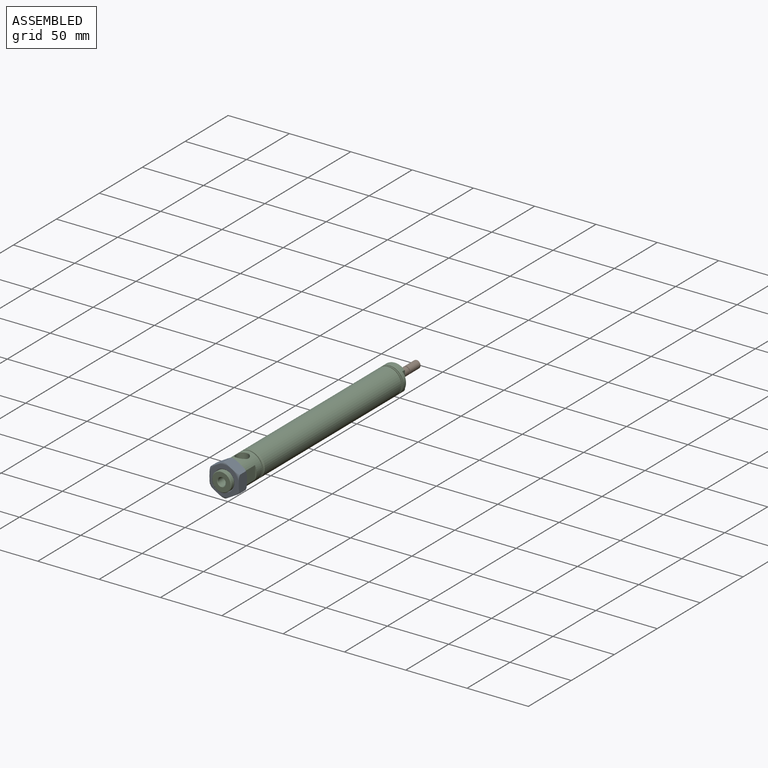
[diagram: assembled view]
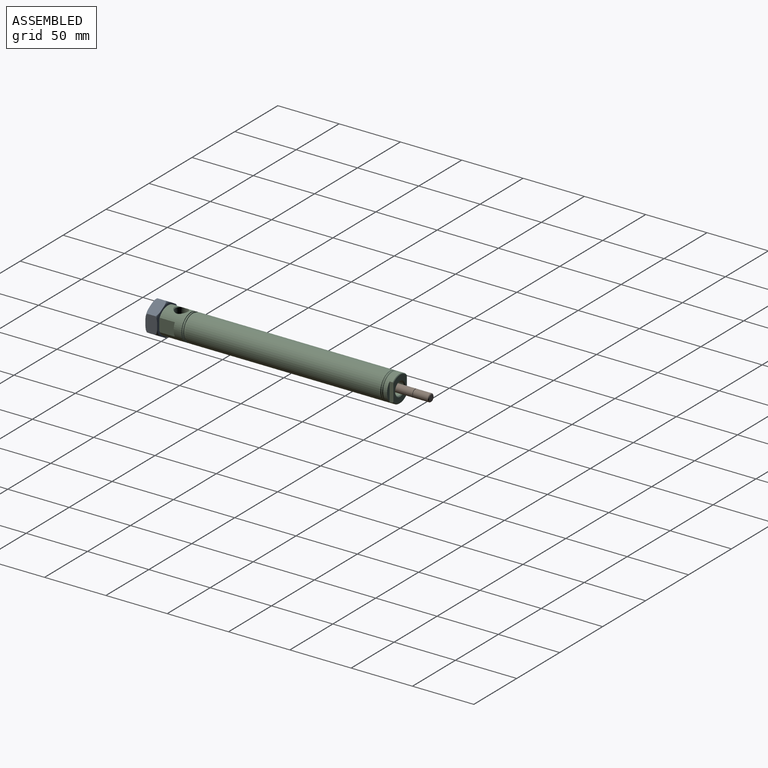
[diagram: assembled view, second angle]
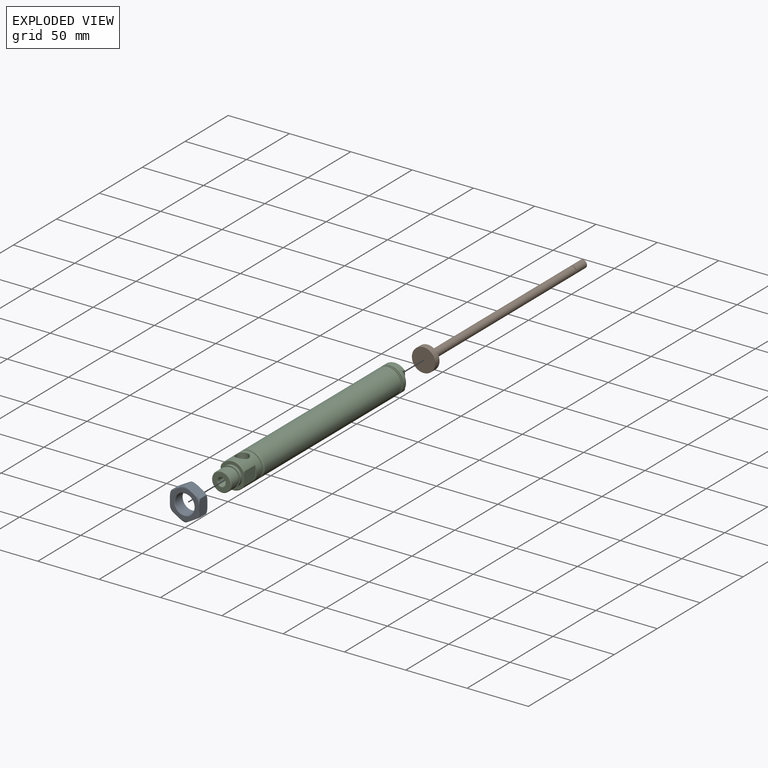
[diagram: exploded view]
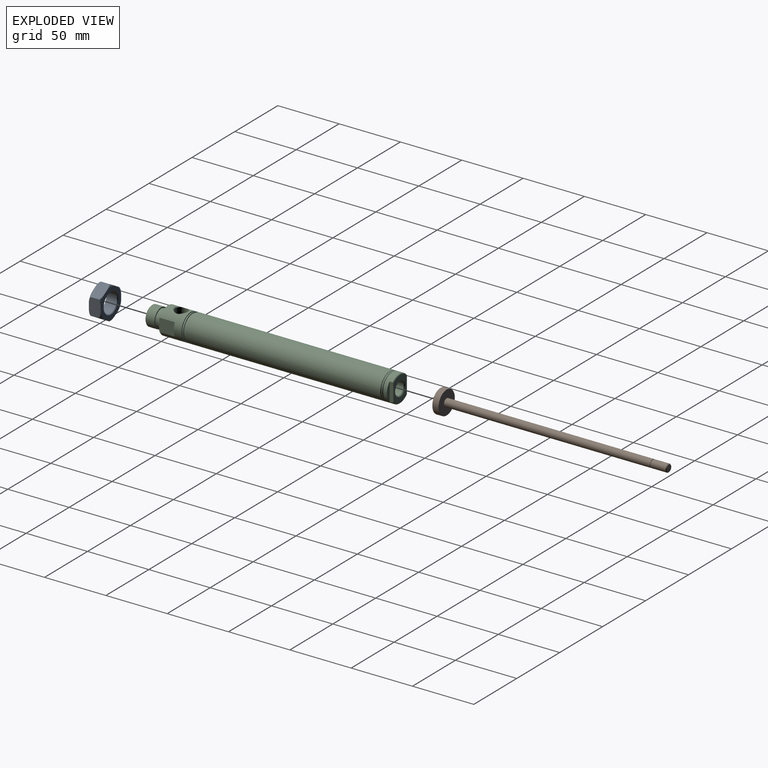
[diagram: exploded view, second angle]
ASSEMBLY  parts=3 mates=2
PART A: 13 faces, bbox 29.8x9.7x29.8 mm
  f0: plane 23.57x23.57mm, normal (0,-1,0), area 212.7mm2, adj f11,f12
  f1: cylinder r=7.94mm len=15.88mm, axis (0,1,0), area 431.5mm2, adj f9,f12
  f2: plane 11.94x9.64mm, normal (0.5,0,0.87), area 125mm2, adj f3,f7,f10,f11
  f3: plane 11.94x9.64mm, normal (-0.5,0,0.87), area 125mm2, adj f2,f4,f10,f11
  f4: plane 13.79x9.64mm, normal (-1,0,0), area 125mm2, adj f3,f5,f10,f11
  f5: plane 11.94x9.64mm, normal (-0.5,0,-0.87), area 125mm2, adj f4,f6,f10,f11
  f6: plane 11.94x9.64mm, normal (0.5,0,-0.87), area 125mm2, adj f5,f7,f10,f11
  f7: plane 13.79x9.64mm, normal (1,0,0), area 125mm2, adj f2,f6,f10,f11
  f8: plane 23.57x23.57mm, normal (0,1,0), area 212.7mm2, adj f9,f10
  f9: cone r=8.44mm half-angle=45deg, axis (0,1,0), area 36.4mm2, adj f1,f8
  f10: torus R=11.78mm, axis (0,-1,0), area 63.9mm2, adj f2,f3,f4,f5,f6,f7,f8
  f11: torus R=11.78mm, axis (0,-1,0), area 63.9mm2, adj f0,f2,f3,f4,f5,f6,f7
  f12: cone r=7.94mm half-angle=45deg, axis (0,-1,0), area 36.4mm2, adj f0,f1
PART B: 10 faces, bbox 19.1x186.3x19.1 mm
  f0: cylinder r=9.53mm len=19.05mm, axis (0,1,0), area 299.2mm2, adj f1,f2
  f1: plane 19.05x19.05mm, normal (0,-1,0), area 253.4mm2, adj f0,f3
  f2: plane 19.05x19.05mm, normal (0,1,0), area 285mm2, adj f0
  f3: cylinder r=3.17mm len=168.07mm, axis (0,1,0), area 3352.8mm2, adj f1,f4
  f4: plane 6.35x6.35mm, normal (0,-1,0), area 9.2mm2, adj f3,f6
  f5: plane 6.35x6.35mm, normal (0,1,0), area 9.2mm2, adj f6,f7
  f6: cylinder r=2.67mm len=5.35mm, axis (0,1,0), area 8.4mm2, adj f4,f5
  f7: cylinder r=3.17mm len=12.2mm, axis (0,1,0), area 243.4mm2, adj f5,f8
  f8: cone r=2.67mm half-angle=45deg, axis (0,1,0), area 13mm2, adj f7,f9
  f9: plane 5.35x5.35mm, normal (0,-1,0), area 22.5mm2, adj f8
PART C: 48 faces, bbox 21.9x202.5x21.9 mm
  f0: cone r=10.42mm half-angle=45deg, axis (0,1,0), area 16.7mm2, adj f3,f5,f39,f45
  f1: cone r=10.42mm half-angle=45deg, axis (0,-1,0), area 12.5mm2, adj f21,f22,f41,f43
  f2: plane 8.11x1.98mm, normal (0,0,1), area 11.2mm2, adj f28,f30
  f3: cylinder r=10.92mm len=21.84mm, axis (0,1,0), area 906.8mm2, adj f0,f12,f26,f27,f28,f35,f38,f39
  f4: cylinder r=10.92mm len=21.84mm, axis (0,1,0), area 52.3mm2, adj f14,f15
  f5: plane 20.84x19.05mm, normal (0,-1,0), area 133.7mm2, adj f0,f11,f35,f39,f45
  f6: plane 14.88x14.88mm, normal (0,-1,0), area 131.4mm2, adj f36,f37
  f7: cylinder r=7.94mm len=15.88mm, axis (0,1,0), area 354.8mm2, adj f8,f36
  f8: plane 15.88x15.88mm, normal (0,1,0), area 44mm2, adj f7,f9
  f9: cylinder r=7mm len=14mm, axis (0,1,0), area 123.2mm2, adj f8,f10
  f10: plane 15.85x15.85mm, normal (0,-1,0), area 43.4mm2, adj f9,f11
  f11: cylinder r=7.92mm len=15.85mm, axis (0,1,0), area 113.8mm2, adj f5,f10
  f12: plane 21.84x21.84mm, normal (0,1,0), area 50.5mm2, adj f3,f13
  f13: cylinder r=10.16mm len=20.32mm, axis (0,1,0), area 48.6mm2, adj f12,f14
  f14: plane 21.84x21.84mm, normal (0,-1,0), area 50.5mm2, adj f4,f13
  f15: plane 21.84x21.84mm, normal (0,1,0), area 50.5mm2, adj f4,f16
  f16: cylinder r=10.16mm len=20.32mm, axis (0,1,0), area 48.6mm2, adj f15,f17
  f17: cone r=10.16mm half-angle=45deg, axis (0,1,0), area 71.4mm2, adj f16,f18
  f18: cylinder r=10.92mm len=159.13mm, axis (0,1,0), area 10920.4mm2, adj f17,f20
  f19: plane 21.84x21.84mm, normal (0,-1,0), area 50.5mm2, adj f20,f25
  f20: cone r=10.92mm half-angle=45deg, axis (0,-1,0), area 71.4mm2, adj f18,f19
  f21: plane 20.84x15.75mm, normal (0,1,0), area 186.1mm2, adj f1,f34,f41,f43,f47
  f22: cylinder r=10.92mm len=21.84mm, axis (0,1,0), area 307.5mm2, adj f1,f23,f34,f40,f41,f42,f43
  f23: plane 21.84x21.84mm, normal (0,-1,0), area 50.5mm2, adj f22,f24
  f24: cone r=10.92mm half-angle=45deg, axis (0,-1,0), area 71.4mm2, adj f23,f25
  f25: cylinder r=10.92mm len=21.84mm, axis (0,1,0), area 52.3mm2, adj f19,f24
  f26: cone r=5.15mm half-angle=45deg, axis (0,0,1), area 5.4mm2, adj f3,f28
  f27: cone r=5.15mm half-angle=45deg, axis (0,0,1), area 5.4mm2, adj f3,f28
  f28: cylinder r=5.15mm len=10.3mm, axis (0,0,-1), area 291.7mm2, adj f2,f3,f26,f27,f29,f30
  f29: plane 8.11x1.98mm, normal (0,0,1), area 11.2mm2, adj f28,f30
  f30: cylinder r=3.17mm len=41.07mm, axis (0,-1,0), area 727.2mm2, adj f2,f28,f29,f31,f37
  f31: plane 19.05x19.05mm, normal (0,1,0), area 253.4mm2, adj f30,f32
  f32: cylinder r=9.53mm len=132mm, axis (0,1,0), area 7899.8mm2, adj f31,f33
  f33: plane 19.05x19.05mm, normal (0,-1,0), area 201.7mm2, adj f32,f46
  f34: cone r=10.42mm half-angle=45deg, axis (0,-1,0), area 12.5mm2, adj f21,f22,f41,f43
  f35: cone r=10.42mm half-angle=45deg, axis (0,1,0), area 16.7mm2, adj f3,f5,f39,f45
  f36: cone r=7.94mm half-angle=45deg, axis (0,1,0), area 34.2mm2, adj f6,f7
  f37: cone r=3.17mm half-angle=45deg, axis (0,-1,0), area 15.2mm2, adj f6,f30
  f38: plane 10.69x1.4mm, normal (0,-1,0), area 10.1mm2, adj f3,f39
  f39: plane 12.74x10.73mm, normal (1,0,0), area 135.2mm2, adj f0,f3,f5,f35,f38
  f40: plane 15.14x3.05mm, normal (0,1,0), area 31.7mm2, adj f22,f41
  f41: plane 15.16x3.07mm, normal (1,0,0), area 45.8mm2, adj f1,f21,f22,f34,f40
  f42: plane 15.14x3.05mm, normal (0,1,0), area 31.7mm2, adj f22,f43
  f43: plane 15.16x3.07mm, normal (-1,0,0), area 45.8mm2, adj f1,f21,f22,f34,f42
  f44: plane 10.69x1.4mm, normal (0,-1,0), area 10.1mm2, adj f3,f45
  f45: plane 12.74x10.73mm, normal (-1,0,0), area 135.2mm2, adj f0,f3,f5,f35,f44
  f46: cylinder r=5.15mm len=28.17mm, axis (0,1,0), area 911.5mm2, adj f33,f47
  f47: cone r=5.85mm half-angle=45deg, axis (0,1,0), area 34.2mm2, adj f21,f46
PLACE A t=(0,-99.69,0)mm
PLACE B rot(axis=(-0.41,0,-0.91),180deg) t=(0,-63.5,0)mm
PLACE C at identity fixed
MATE cylindrical C.f0 <-> B.f0  axis (0,1,0) through (0,-66,0)mm
MATE fastened A.f1 <-> C.f0  axis (0,1,0) through (0,-94.87,0)mm
